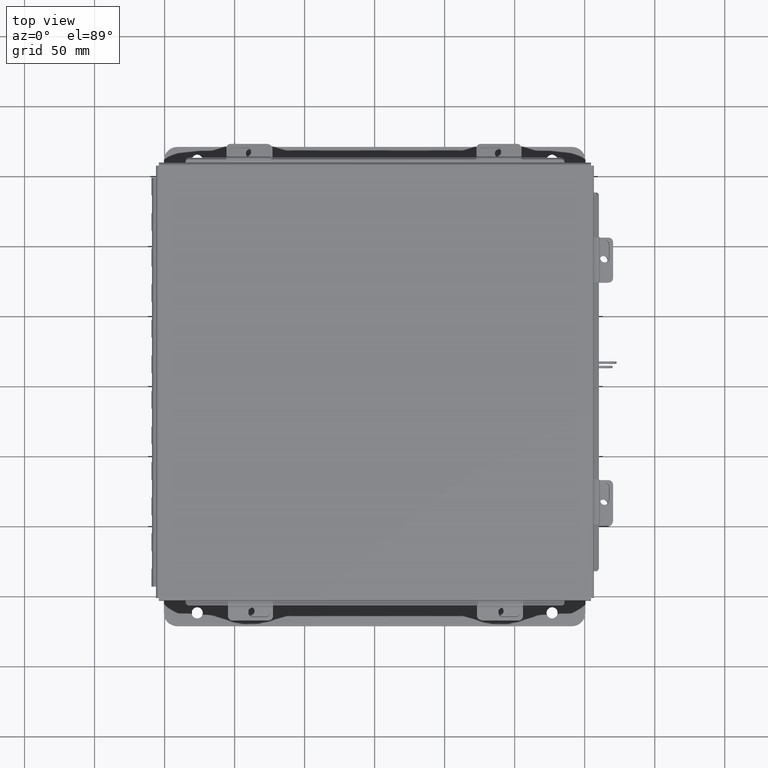
[diagram: clean part render]
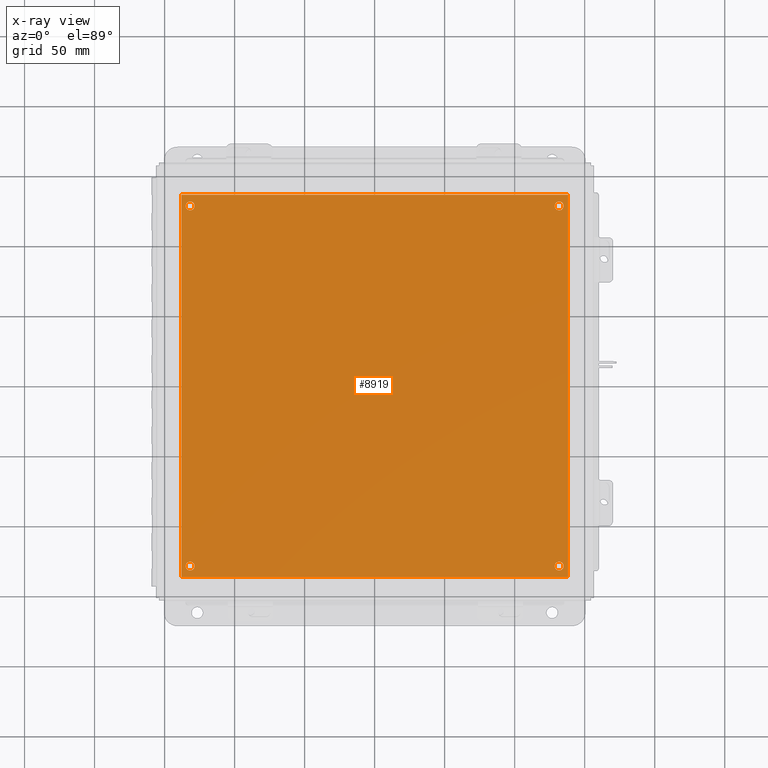
[diagram: x-ray — body ghosted, one internal face saturated and labeled with its STEP entity id]
A machine part, top view, then the same camera in x-ray: the body is ghosted and one INTERNAL B-rep face — a face not visible from any outside direction — is saturated and labeled: STEP entity #8919.
In plain terms, the highlighted planar face has unit normal (0, 0, -1).
Its self-contained STEP definition (entity closure, byte-faithful):
#381 = VERTEX_POINT ( 'NONE', #10386 ) ;
#438 = ORIENTED_EDGE ( 'NONE', *, *, #11427, .F. ) ;
#515 = AXIS2_PLACEMENT_3D ( 'NONE', #7912, #17386, #9273 ) ;
#682 = VERTEX_POINT ( 'NONE', #12712 ) ;
#1004 = EDGE_CURVE ( 'NONE', #9963, #16096, #15748, .T. ) ;
#1117 = CIRCLE ( 'NONE', #6604, 0.1249999999999993500 ) ;
#1126 = CARTESIAN_POINT ( 'NONE',  ( 0.1250000000000019200, 0.3120000000000015500, 0.0000000000000000000 ) ) ;
#1246 = CARTESIAN_POINT ( 'NONE',  ( 0.2500000000000020000, 0.3120000000000015500, 0.0000000000000000000 ) ) ;
#1331 = VECTOR ( 'NONE', #11497, 39.37007874015748100 ) ;
#1391 = CARTESIAN_POINT ( 'NONE',  ( 10.62500000000000200, 10.43800000000000100, 0.0000000000000000000 ) ) ;
#1753 = FACE_BOUND ( 'NONE', #17059, .T. ) ;
#1784 = EDGE_CURVE ( 'NONE', #2647, #682, #1959, .T. ) ;
#1815 = CARTESIAN_POINT ( 'NONE',  ( 0.2500000000000001100, 10.43799999999999900, 0.0000000000000000000 ) ) ;
#1825 = CARTESIAN_POINT ( 'NONE',  ( 0.1250000000000001100, 10.43799999999999900, 0.0000000000000000000 ) ) ;
#1910 = EDGE_CURVE ( 'NONE', #8088, #16169, #12041, .T. ) ;
#1959 = CIRCLE ( 'NONE', #7105, 0.1250000000000000600 ) ;
#1961 = EDGE_LOOP ( 'NONE', ( #12331, #4190 ) ) ;
#2102 = ORIENTED_EDGE ( 'NONE', *, *, #1784, .F. ) ;
#2209 = VERTEX_POINT ( 'NONE', #5881 ) ;
#2504 = AXIS2_PLACEMENT_3D ( 'NONE', #1391, #10864, #2740 ) ;
#2565 = ORIENTED_EDGE ( 'NONE', *, *, #1910, .T. ) ;
#2607 = DIRECTION ( 'NONE',  ( -1.000000000000000000, 0.0000000000000000000, 0.0000000000000000000 ) ) ;
#2647 = VERTEX_POINT ( 'NONE', #1126 ) ;
#2740 = DIRECTION ( 'NONE',  ( -1.000000000000000000, 0.0000000000000000000, 0.0000000000000000000 ) ) ;
#2841 = CIRCLE ( 'NONE', #2504, 0.1249999999999993500 ) ;
#2982 = AXIS2_PLACEMENT_3D ( 'NONE', #1246, #10731, #2607 ) ;
#3174 = DIRECTION ( 'NONE',  ( 1.000000000000000000, 0.0000000000000000000, 0.0000000000000000000 ) ) ;
#3198 = VERTEX_POINT ( 'NONE', #1825 ) ;
#3213 = DIRECTION ( 'NONE',  ( 0.0000000000000000000, 0.0000000000000000000, 1.000000000000000000 ) ) ;
#3254 = AXIS2_PLACEMENT_3D ( 'NONE', #1815, #11293, #3174 ) ;
#3399 = ORIENTED_EDGE ( 'NONE', *, *, #5468, .T. ) ;
#4190 = ORIENTED_EDGE ( 'NONE', *, *, #11730, .F. ) ;
#4465 = AXIS2_PLACEMENT_3D ( 'NONE', #4560, #14017, #5924 ) ;
#4560 = CARTESIAN_POINT ( 'NONE',  ( 10.62500000000000200, 10.43800000000000100, 0.0000000000000000000 ) ) ;
#4687 = DIRECTION ( 'NONE',  ( 0.0000000000000000000, 0.0000000000000000000, 1.000000000000000000 ) ) ;
#4691 = CARTESIAN_POINT ( 'NONE',  ( 0.0000000000000000000, 10.75000000000000200, 0.0000000000000000000 ) ) ;
#4869 = CIRCLE ( 'NONE', #2982, 0.1250000000000000600 ) ;
#4954 = DIRECTION ( 'NONE',  ( 0.0000000000000000000, 0.0000000000000000000, 1.000000000000000000 ) ) ;
#4977 = CARTESIAN_POINT ( 'NONE',  ( 10.87500000000000000, 0.0000000000000000000, 0.0000000000000000000 ) ) ;
#5010 = VERTEX_POINT ( 'NONE', #15698 ) ;
#5240 = DIRECTION ( 'NONE',  ( -0.0000000000000000000, -1.000000000000000000, -0.0000000000000000000 ) ) ;
#5367 = FACE_OUTER_BOUND ( 'NONE', #14153, .T. ) ;
#5468 = EDGE_CURVE ( 'NONE', #16169, #12791, #14036, .T. ) ;
#5536 = VECTOR ( 'NONE', #17161, 39.37007874015748100 ) ;
#5792 = FACE_BOUND ( 'NONE', #1961, .T. ) ;
#5881 = CARTESIAN_POINT ( 'NONE',  ( 10.75000000000000200, 10.43800000000000100, 0.0000000000000000000 ) ) ;
#5924 = DIRECTION ( 'NONE',  ( -1.000000000000000000, 0.0000000000000000000, 0.0000000000000000000 ) ) ;
#5928 = DIRECTION ( 'NONE',  ( 1.000000000000000000, 0.0000000000000000000, 0.0000000000000000000 ) ) ;
#6053 = PLANE ( 'NONE',  #10569 ) ;
#6226 = FACE_BOUND ( 'NONE', #11494, .T. ) ;
#6604 = AXIS2_PLACEMENT_3D ( 'NONE', #11335, #3213, #12691 ) ;
#6884 = ORIENTED_EDGE ( 'NONE', *, *, #8925, .T. ) ;
#7105 = AXIS2_PLACEMENT_3D ( 'NONE', #13065, #4954, #14414 ) ;
#7367 = CARTESIAN_POINT ( 'NONE',  ( 10.50000000000000400, 0.3120000000000038900, 0.0000000000000000000 ) ) ;
#7419 = DIRECTION ( 'NONE',  ( 0.0000000000000000000, 0.0000000000000000000, -1.000000000000000000 ) ) ;
#7570 = CARTESIAN_POINT ( 'NONE',  ( 10.50000000000000200, 10.43800000000000100, 0.0000000000000000000 ) ) ;
#7621 = CARTESIAN_POINT ( 'NONE',  ( 10.87500000000000000, 0.0000000000000000000, 0.0000000000000000000 ) ) ;
#7643 = EDGE_CURVE ( 'NONE', #3198, #381, #15999, .T. ) ;
#7912 = CARTESIAN_POINT ( 'NONE',  ( 10.62500000000000400, 0.3120000000000038900, 0.0000000000000000000 ) ) ;
#8088 = VERTEX_POINT ( 'NONE', #14778 ) ;
#8129 = EDGE_CURVE ( 'NONE', #2209, #12771, #2841, .T. ) ;
#8226 = CIRCLE ( 'NONE', #4465, 0.1249999999999993500 ) ;
#8539 = LINE ( 'NONE', #4691, #1331 ) ;
#8702 = CARTESIAN_POINT ( 'NONE',  ( 10.75000000000000400, 0.3120000000000038900, 0.0000000000000000000 ) ) ;
#8919 = ADVANCED_FACE ( 'NONE', ( #6226, #8969, #5792, #1753, #5367 ), #6053, .F. ) ;
#8925 = EDGE_CURVE ( 'NONE', #5010, #8088, #8539, .T. ) ;
#8969 = FACE_BOUND ( 'NONE', #15150, .T. ) ;
#9128 = LINE ( 'NONE', #4977, #5536 ) ;
#9208 = EDGE_CURVE ( 'NONE', #16096, #9963, #1117, .T. ) ;
#9273 = DIRECTION ( 'NONE',  ( 1.000000000000000000, 0.0000000000000000000, 0.0000000000000000000 ) ) ;
#9963 = VERTEX_POINT ( 'NONE', #8702 ) ;
#10099 = EDGE_CURVE ( 'NONE', #12791, #5010, #9128, .T. ) ;
#10386 = CARTESIAN_POINT ( 'NONE',  ( 0.3750000000000001100, 10.43799999999999900, 0.0000000000000000000 ) ) ;
#10415 = ORIENTED_EDGE ( 'NONE', *, *, #7643, .F. ) ;
#10569 = AXIS2_PLACEMENT_3D ( 'NONE', #15513, #7419, #16893 ) ;
#10731 = DIRECTION ( 'NONE',  ( 0.0000000000000000000, 0.0000000000000000000, 1.000000000000000000 ) ) ;
#10864 = DIRECTION ( 'NONE',  ( 0.0000000000000000000, 0.0000000000000000000, 1.000000000000000000 ) ) ;
#11293 = DIRECTION ( 'NONE',  ( 0.0000000000000000000, 0.0000000000000000000, 1.000000000000000000 ) ) ;
#11335 = CARTESIAN_POINT ( 'NONE',  ( 10.62500000000000400, 0.3120000000000038900, 0.0000000000000000000 ) ) ;
#11427 = EDGE_CURVE ( 'NONE', #682, #2647, #4869, .T. ) ;
#11494 = EDGE_LOOP ( 'NONE', ( #438, #2102 ) ) ;
#11497 = DIRECTION ( 'NONE',  ( -1.000000000000000000, -0.0000000000000000000, -0.0000000000000000000 ) ) ;
#11730 = EDGE_CURVE ( 'NONE', #12771, #2209, #8226, .T. ) ;
#12041 = LINE ( 'NONE', #16064, #15639 ) ;
#12061 = CIRCLE ( 'NONE', #3254, 0.1250000000000000000 ) ;
#12260 = AXIS2_PLACEMENT_3D ( 'NONE', #12795, #4687, #14159 ) ;
#12331 = ORIENTED_EDGE ( 'NONE', *, *, #8129, .F. ) ;
#12691 = DIRECTION ( 'NONE',  ( 1.000000000000000000, 0.0000000000000000000, 0.0000000000000000000 ) ) ;
#12712 = CARTESIAN_POINT ( 'NONE',  ( 0.3750000000000020000, 0.3120000000000015500, 0.0000000000000000000 ) ) ;
#12771 = VERTEX_POINT ( 'NONE', #7570 ) ;
#12791 = VERTEX_POINT ( 'NONE', #7621 ) ;
#12795 = CARTESIAN_POINT ( 'NONE',  ( 0.2500000000000001100, 10.43799999999999900, 0.0000000000000000000 ) ) ;
#13065 = CARTESIAN_POINT ( 'NONE',  ( 0.2500000000000020000, 0.3120000000000015500, 0.0000000000000000000 ) ) ;
#14017 = DIRECTION ( 'NONE',  ( 0.0000000000000000000, 0.0000000000000000000, 1.000000000000000000 ) ) ;
#14036 = LINE ( 'NONE', #15402, #16797 ) ;
#14153 = EDGE_LOOP ( 'NONE', ( #2565, #3399, #14709, #6884 ) ) ;
#14159 = DIRECTION ( 'NONE',  ( 1.000000000000000000, 0.0000000000000000000, 0.0000000000000000000 ) ) ;
#14222 = CARTESIAN_POINT ( 'NONE',  ( 0.0000000000000000000, 0.0000000000000000000, 0.0000000000000000000 ) ) ;
#14391 = EDGE_CURVE ( 'NONE', #381, #3198, #12061, .T. ) ;
#14414 = DIRECTION ( 'NONE',  ( -1.000000000000000000, 0.0000000000000000000, 0.0000000000000000000 ) ) ;
#14534 = ORIENTED_EDGE ( 'NONE', *, *, #14391, .F. ) ;
#14709 = ORIENTED_EDGE ( 'NONE', *, *, #10099, .T. ) ;
#14778 = CARTESIAN_POINT ( 'NONE',  ( 0.0000000000000000000, 10.75000000000000200, 0.0000000000000000000 ) ) ;
#15150 = EDGE_LOOP ( 'NONE', ( #15806, #17277 ) ) ;
#15402 = CARTESIAN_POINT ( 'NONE',  ( 0.0000000000000000000, 0.0000000000000000000, 0.0000000000000000000 ) ) ;
#15513 = CARTESIAN_POINT ( 'NONE',  ( 0.0000000000000000000, 0.0000000000000000000, 0.0000000000000000000 ) ) ;
#15639 = VECTOR ( 'NONE', #5240, 39.37007874015748100 ) ;
#15698 = CARTESIAN_POINT ( 'NONE',  ( 10.87500000000000000, 10.75000000000000200, 0.0000000000000000000 ) ) ;
#15748 = CIRCLE ( 'NONE', #515, 0.1249999999999993500 ) ;
#15806 = ORIENTED_EDGE ( 'NONE', *, *, #1004, .F. ) ;
#15999 = CIRCLE ( 'NONE', #12260, 0.1250000000000000000 ) ;
#16064 = CARTESIAN_POINT ( 'NONE',  ( 0.0000000000000000000, 0.0000000000000000000, 0.0000000000000000000 ) ) ;
#16096 = VERTEX_POINT ( 'NONE', #7367 ) ;
#16169 = VERTEX_POINT ( 'NONE', #14222 ) ;
#16797 = VECTOR ( 'NONE', #5928, 39.37007874015748100 ) ;
#16893 = DIRECTION ( 'NONE',  ( -1.000000000000000000, 0.0000000000000000000, -0.0000000000000000000 ) ) ;
#17059 = EDGE_LOOP ( 'NONE', ( #14534, #10415 ) ) ;
#17161 = DIRECTION ( 'NONE',  ( 0.0000000000000000000, 1.000000000000000000, 0.0000000000000000000 ) ) ;
#17277 = ORIENTED_EDGE ( 'NONE', *, *, #9208, .F. ) ;
#17386 = DIRECTION ( 'NONE',  ( 0.0000000000000000000, 0.0000000000000000000, 1.000000000000000000 ) ) ;